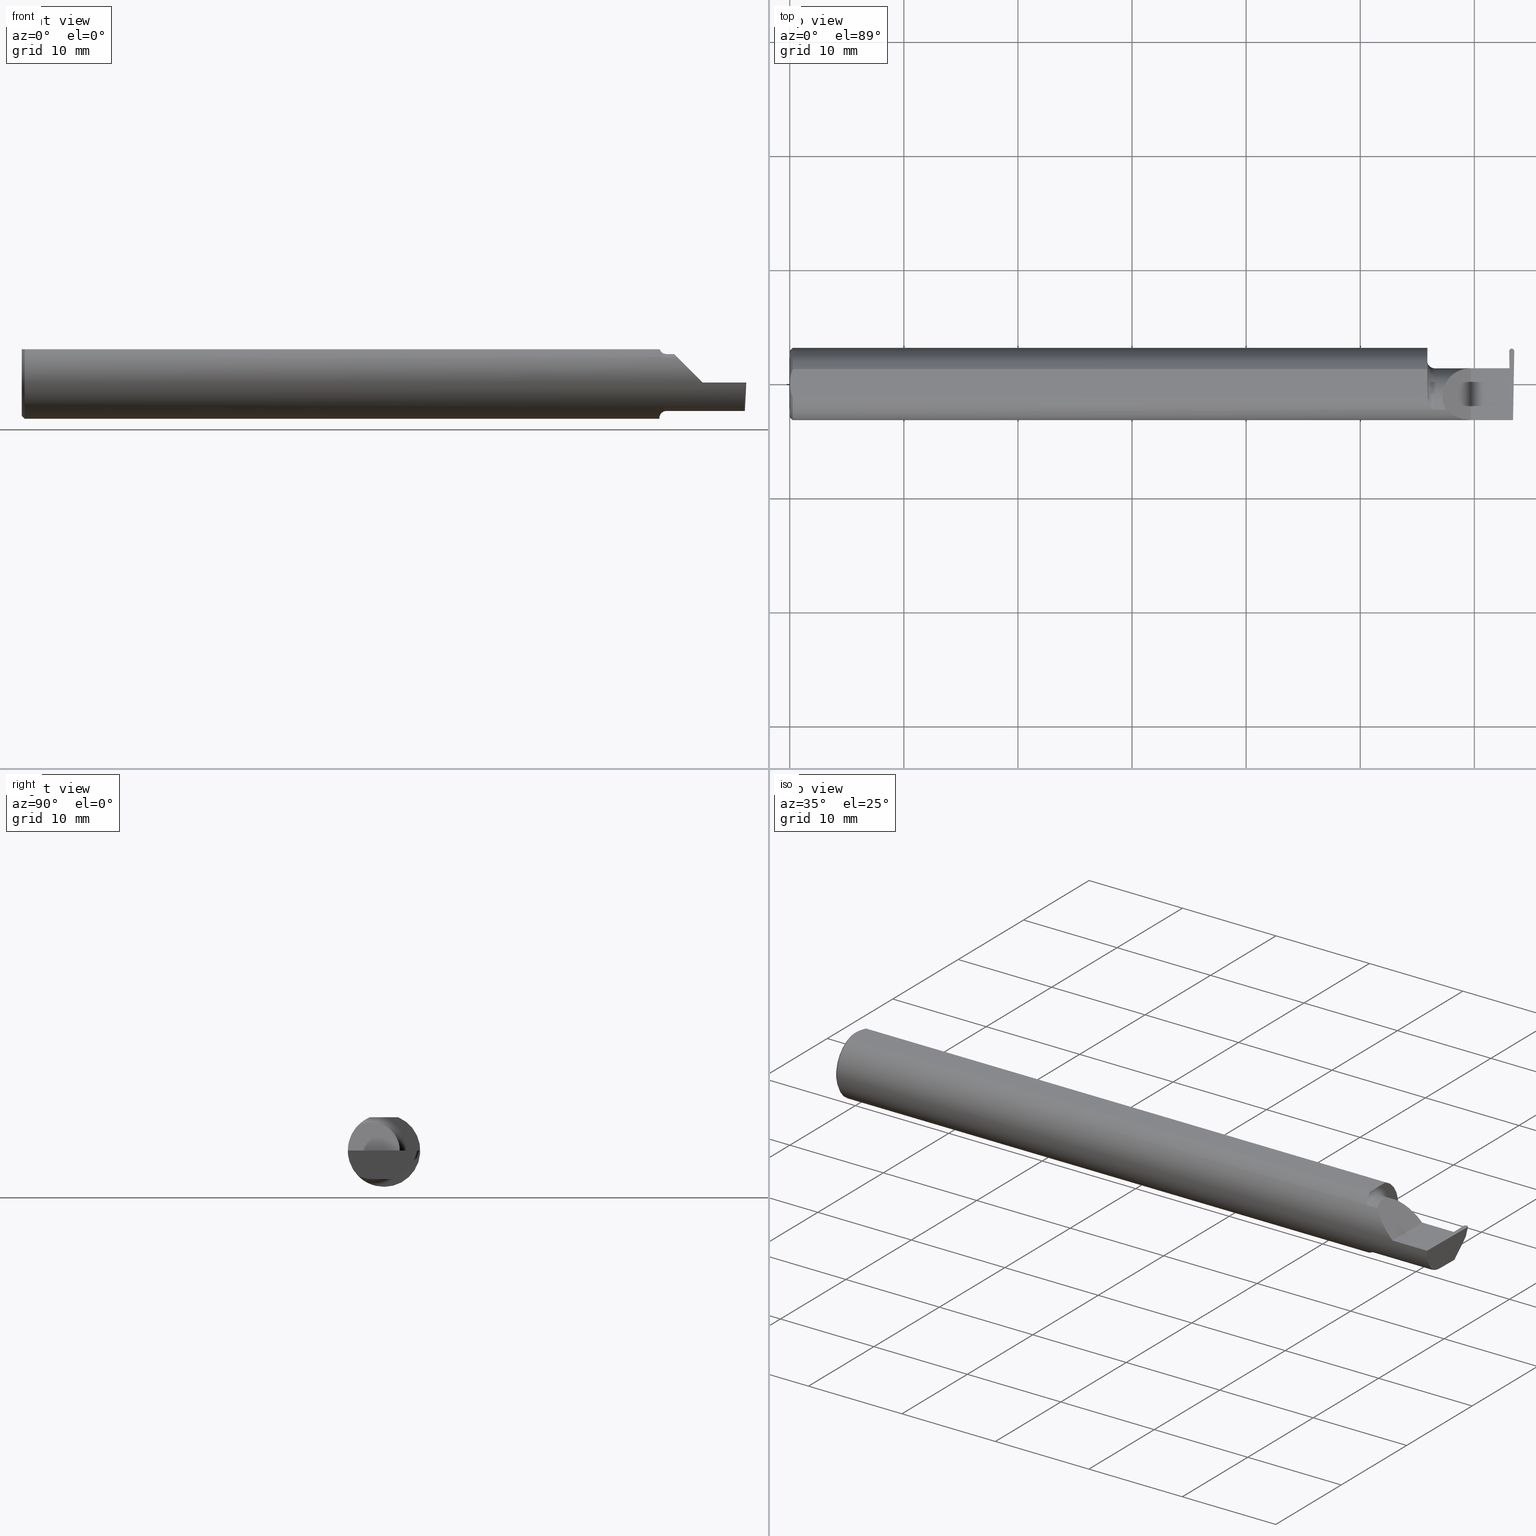
[diagram: canonical four-view strip — front | top / right | iso, engineering-drawing reading convention]
A machine part, canonical four-view strip (front | top / right | iso — engineering-drawing reading convention). The complete STEP part file that produces these views, byte-faithful:
ISO-10303-21;
HEADER;
FILE_DESCRIPTION (( 'STEP AP203' ),
    '1' );
FILE_NAME ('221912-GFR017Q-4.STEP',
    '2024-06-17T18:38:01',
    ( '' ),
    ( '' ),
    'SwSTEP 2.0',
    'SolidWorks 2022',
    '' );
FILE_SCHEMA (( 'CONFIG_CONTROL_DESIGN' ));
ENDSEC;

DATA;
#1 = EDGE_LOOP ( 'NONE', ( #291, #182, #491 ) ) ;
#2 = CARTESIAN_POINT ( 'NONE',  ( 2.200000000000000178, 0.05399999999999999939, 3.673940397442056417E-17 ) ) ;
#3 = CARTESIAN_POINT ( 'NONE',  ( 2.753179778023443269, 0.1250000000000000278, 0.1149999999999999217 ) ) ;
#4 = ORIENTED_EDGE ( 'NONE', *, *, #629, .F. ) ;
#5 = CC_DESIGN_PERSON_AND_ORGANIZATION_ASSIGNMENT ( #383, #333, ( #14 ) ) ;
#6 = CARTESIAN_POINT ( 'NONE',  ( 2.224355642859858317, -0.01728409361947881584, 0.1256443571401406056 ) ) ;
#7 = CARTESIAN_POINT ( 'NONE',  ( 2.201395249340555527, -0.04087966525208431429, 0.1149999999999999356 ) ) ;
#8 =( LENGTH_UNIT ( ) NAMED_UNIT ( * ) SI_UNIT ( $, .METRE. ) );
#9 = VERTEX_POINT ( 'NONE', #252 ) ;
#10 = EDGE_CURVE ( 'NONE', #241, #186, #70, .T. ) ;
#11 = APPROVAL_ROLE ( '' ) ;
#12 = CARTESIAN_POINT ( 'NONE',  ( 2.220169762358874532, -0.08954173371311453800, 0.08723520050116044533 ) ) ;
#13 = VERTEX_POINT ( 'NONE', #570 ) ;
#14 = PRODUCT ( '221912-GFR017Q-4', '221912-GFR017Q-4', '', ( #447 ) ) ;
#15 = LENGTH_MEASURE_WITH_UNIT ( LENGTH_MEASURE( 0.02539999999999999897 ), #8 );
#16 = AXIS2_PLACEMENT_3D ( 'NONE', #509, #355, #357 ) ;
#17 = AXIS2_PLACEMENT_3D ( 'NONE', #437, #493, #390 ) ;
#18 = CARTESIAN_POINT ( 'NONE',  ( 2.201278290187167919, -0.04898979485482365254, 0.1149999999999999217 ) ) ;
#19 = ORIENTED_EDGE ( 'NONE', *, *, #410, .T. ) ;
#20 = CARTESIAN_POINT ( 'NONE',  ( 0.000000000000000000, 0.000000000000000000, 0.000000000000000000 ) ) ;
#21 = ORIENTED_EDGE ( 'NONE', *, *, #397, .T. ) ;
#22 = ADVANCED_FACE ( 'NONE', ( #136 ), #349, .F. ) ;
#23 = VERTEX_POINT ( 'NONE', #684 ) ;
#24 = ORIENTED_EDGE ( 'NONE', *, *, #28, .T. ) ;
#25 = CC_DESIGN_PERSON_AND_ORGANIZATION_ASSIGNMENT ( #589, #200, ( #174 ) ) ;
#26 = DIRECTION ( 'NONE',  ( 1.000000000000000000, 0.000000000000000000, 0.000000000000000000 ) ) ;
#27 = DIRECTION ( 'NONE',  ( 0.000000000000000000, 0.000000000000000000, -1.000000000000000000 ) ) ;
#28 = EDGE_CURVE ( 'NONE', #547, #433, #112, .T. ) ;
#29 = CARTESIAN_POINT ( 'NONE',  ( 1.642610067308552155E-16, 0.01684316307400865464, 0.1149999999999999217 ) ) ;
#30 = ORIENTED_EDGE ( 'NONE', *, *, #436, .F. ) ;
#31 = CARTESIAN_POINT ( 'NONE',  ( 0.000000000000000000, 3.414809992080329023E-17, 0.1149999999999999217 ) ) ;
#32 = DIRECTION ( 'NONE',  ( -0.01745240643727528213, -0.9998476951563914916, 0.000000000000000000 ) ) ;
#33 = VERTEX_POINT ( 'NONE', #188 ) ;
#34 = AXIS2_PLACEMENT_3D ( 'NONE', #267, #533, #649 ) ;
#35 = CARTESIAN_POINT ( 'NONE',  ( 0.004414142251465132810, -0.03315347577847933824, 0.1149999999999999356 ) ) ;
#36 = CARTESIAN_POINT ( 'NONE',  ( 2.263691591372603895, -0.09042045454545458161, 0.08630840862739504182 ) ) ;
#37 = EDGE_CURVE ( 'NONE', #73, #105, #132, .T. ) ;
#38 = CARTESIAN_POINT ( 'NONE',  ( 2.200000000000000178, 0.1249999999999999584, 0.000000000000000000 ) ) ;
#39 = LINE ( 'NONE', #43, #253 ) ;
#40 = LINE ( 'NONE', #692, #327 ) ;
#41 = DESIGN_CONTEXT ( 'detailed design', #669, 'design' ) ;
#42 = ORIENTED_EDGE ( 'NONE', *, *, #588, .F. ) ;
#43 = CARTESIAN_POINT ( 'NONE',  ( 2.353741705000000017, -0.09042045454545420691, -0.08630840862739533326 ) ) ;
#44 = CARTESIAN_POINT ( 'NONE',  ( 2.482484743930750248, 0.1130888516759625262, 0.000000000000000000 ) ) ;
#45 = EDGE_CURVE ( 'NONE', #511, #662, #504, .T. ) ;
#46 = AXIS2_PLACEMENT_3D ( 'NONE', #514, #26, #27 ) ;
#47 = ORIENTED_EDGE ( 'NONE', *, *, #668, .T. ) ;
#48 = DIRECTION ( 'NONE',  ( -1.000000000000000000, -0.000000000000000000, -0.000000000000000000 ) ) ;
#49 = CARTESIAN_POINT ( 'NONE',  ( 2.487116141968339189, -0.04422966076191059415, -0.09800000000000008704 ) ) ;
#50 = ORIENTED_EDGE ( 'NONE', *, *, #341, .F. ) ;
#51 = DIRECTION ( 'NONE',  ( -1.000000000000000000, 0.000000000000000000, 1.224646799147352468E-16 ) ) ;
#52 = B_SPLINE_CURVE_WITH_KNOTS ( 'NONE', 3,
 ( #116, #121, #236, #334 ),
 .UNSPECIFIED., .F., .F.,
 ( 4, 4 ),
 ( 0.000000000000000000, 1.000000000000000000 ),
 .UNSPECIFIED. ) ;
#53 = DIRECTION ( 'NONE',  ( -0.01745240643727527866, -0.9998476951563912696, 0.000000000000000000 ) ) ;
#54 = CC_DESIGN_PERSON_AND_ORGANIZATION_ASSIGNMENT ( #104, #307, ( #473 ) ) ;
#55 = VERTEX_POINT ( 'NONE', #345 ) ;
#56 = ORGANIZATION ( 'UNSPECIFIED', 'UNSPECIFIED', '' ) ;
#57 = DIRECTION ( 'NONE',  ( 1.000000000000000000, -3.022133221983130545E-17, 0.000000000000000000 ) ) ;
#58 = LINE ( 'NONE', #640, #516 ) ;
#59 = APPLICATION_PROTOCOL_DEFINITION ( 'international standard', 'config_control_design', 1994, #480 ) ;
#60 =( BOUNDED_CURVE ( )  B_SPLINE_CURVE ( 3, ( #565, #250, #690, #406 ),
 .UNSPECIFIED., .F., .T. ) 
 B_SPLINE_CURVE_WITH_KNOTS ( ( 4, 4 ),
 ( 1.677524580234106333, 3.253450286950926529 ),
 .UNSPECIFIED. ) 
 CURVE ( )  GEOMETRIC_REPRESENTATION_ITEM ( )  RATIONAL_B_SPLINE_CURVE ( ( 1.000000000000000000, 0.8035272986452476340, 0.8035272986452476340, 1.000000000000000000 ) ) 
 REPRESENTATION_ITEM ( '' )  );
#61 = ADVANCED_FACE ( 'NONE', ( #456 ), #299, .F. ) ;
#62 = CARTESIAN_POINT ( 'NONE',  ( 2.483516143673287768, 0.05399999999999997163, 0.000000000000000000 ) ) ;
#63 = ORIENTED_EDGE ( 'NONE', *, *, #507, .T. ) ;
#64 = CARTESIAN_POINT ( 'NONE',  ( 2.266956372099407258, 0.05399999999999999939, 0.08304362790059187371 ) ) ;
#65 = FACE_OUTER_BOUND ( 'NONE', #452, .T. ) ;
#66 = ORIENTED_EDGE ( 'NONE', *, *, #45, .F. ) ;
#67 = CIRCLE ( 'NONE', #312, 0.1250000000000000000 ) ;
#68 = ADVANCED_FACE ( 'NONE', ( #84 ), #137, .T. ) ;
#69 = ORIENTED_EDGE ( 'NONE', *, *, #10, .T. ) ;
#70 = B_SPLINE_CURVE_WITH_KNOTS ( 'NONE', 3,
 ( #617, #630, #356, #301, #409, #147, #360, #674, #505, #245, #458, #190 ),
 .UNSPECIFIED., .F., .F.,
 ( 4, 2, 2, 2, 2, 4 ),
 ( 1.964009442425878487E-07, 0.0001304774066965714305, 0.0002607584124489002687, 0.0005213204239535722566, 0.001042444446962915256, 0.002084692492981602124 ),
 .UNSPECIFIED. ) ;
#71 = EDGE_LOOP ( 'NONE', ( #232, #624, #268, #627 ) ) ;
#72 = ORIENTED_EDGE ( 'NONE', *, *, #519, .T. ) ;
#73 = VERTEX_POINT ( 'NONE', #246 ) ;
#74 = ORIENTED_EDGE ( 'NONE', *, *, #302, .F. ) ;
#75 = CC_DESIGN_PERSON_AND_ORGANIZATION_ASSIGNMENT ( #610, #124, ( #257 ) ) ;
#76 = ADVANCED_FACE ( 'NONE', ( #675 ), #195, .T. ) ;
#77 = ORIENTED_EDGE ( 'NONE', *, *, #534, .T. ) ;
#78 = ORIENTED_EDGE ( 'NONE', *, *, #351, .F. ) ;
#79 = VECTOR ( 'NONE', #165, 39.37007874015748143 ) ;
#80 = DIRECTION ( 'NONE',  ( 0.000000000000000000, -0.7071067811865514585, 0.7071067811865435759 ) ) ;
#81 = CARTESIAN_POINT ( 'NONE',  ( 0.006956794985978487743, -0.04122489957750442163, 0.1149999999999999356 ) ) ;
#82 = DIRECTION ( 'NONE',  ( -1.000000000000000000, 3.022133221983130545E-17, -0.000000000000000000 ) ) ;
#83 = ORIENTED_EDGE ( 'NONE', *, *, #573, .T. ) ;
#84 = FACE_OUTER_BOUND ( 'NONE', #71, .T. ) ;
#85 = CARTESIAN_POINT ( 'NONE',  ( 2.494705994581233099, -0.1250000000000000278, -0.03254916765648430133 ) ) ;
#86 = EDGE_CURVE ( 'NONE', #33, #555, #419, .T. ) ;
#87 = ORIENTED_EDGE ( 'NONE', *, *, #217, .F. ) ;
#88 = LINE ( 'NONE', #638, #159 ) ;
#89 = ORIENTED_EDGE ( 'NONE', *, *, #573, .F. ) ;
#90 = CARTESIAN_POINT ( 'NONE',  ( 2.200000000000000178, 0.1250000000000000278, 0.1149999999999999217 ) ) ;
#91 = CARTESIAN_POINT ( 'NONE',  ( 0.000000000000000000, 3.414809992080329023E-17, 0.1149999999999999217 ) ) ;
#92 = DATE_TIME_ROLE ( 'classification_date' ) ;
#93 = CARTESIAN_POINT ( 'NONE',  ( 2.483759070038810801, 0.05376127692546273790, -0.006836134426924772231 ) ) ;
#94 = DIRECTION ( 'NONE',  ( 0.000000000000000000, -1.000000000000000000, 0.000000000000000000 ) ) ;
#95 = VECTOR ( 'NONE', #567, 39.37007874015748854 ) ;
#96 = DIRECTION ( 'NONE',  ( 1.000000000000000000, 0.000000000000000000, 0.000000000000000000 ) ) ;
#97 = CARTESIAN_POINT ( 'NONE',  ( 2.491352627470454273, 0.1219999999999999835, 0.000000000000000000 ) ) ;
#98 = CARTESIAN_POINT ( 'NONE',  ( 2.200000000000000622, -0.008475349815581305693, 0.1149999999999999356 ) ) ;
#99 = AXIS2_PLACEMENT_3D ( 'NONE', #177, #540, #316 ) ;
#100 = APPROVAL_DATE_TIME ( #569, #470 ) ;
#101 = ORIENTED_EDGE ( 'NONE', *, *, #658, .T. ) ;
#102 = DIRECTION ( 'NONE',  ( -1.224646799147352468E-16, 0.000000000000000000, -1.000000000000000000 ) ) ;
#103 = LINE ( 'NONE', #49, #550 ) ;
#104 = PERSON_AND_ORGANIZATION ( #636, #56 ) ;
#105 = VERTEX_POINT ( 'NONE', #407 ) ;
#106 = DIRECTION ( 'NONE',  ( -0.9992386149554827179, 0.01744177490282193196, 0.03489949670250104552 ) ) ;
#107 = FACE_OUTER_BOUND ( 'NONE', #187, .T. ) ;
#108 = CARTESIAN_POINT ( 'NONE',  ( 2.491241705000000195, 0.1210669986517045327, -0.002709632664605812237 ) ) ;
#109 = EDGE_CURVE ( 'NONE', #186, #615, #67, .T. ) ;
#110 = PRODUCT_DEFINITION_SHAPE ( 'NONE', 'NONE',  #257 ) ;
#111 = EDGE_LOOP ( 'NONE', ( #275, #375, #400, #280, #443 ) ) ;
#112 =( BOUNDED_CURVE ( )  B_SPLINE_CURVE ( 3, ( #411, #296, #564, #616 ),
 .UNSPECIFIED., .F., .T. ) 
 B_SPLINE_CURVE_WITH_KNOTS ( ( 4, 4 ),
 ( 4.712388980384689674, 5.474523801125204869 ),
 .UNSPECIFIED. ) 
 CURVE ( )  GEOMETRIC_REPRESENTATION_ITEM ( )  RATIONAL_B_SPLINE_CURVE ( ( 1.000000000000000000, 0.9521787881681385013, 0.9521787881681385013, 1.000000000000000000 ) ) 
 REPRESENTATION_ITEM ( '' )  );
#113 = APPROVAL_PERSON_ORGANIZATION ( #181, #455, #11 ) ;
#114 = DIRECTION ( 'NONE',  ( -0.01745240643727751992, 0.9998476951563912696, -0.000000000000000000 ) ) ;
#115 = CARTESIAN_POINT ( 'NONE',  ( 2.491241705000000639, 0.1161392751108076271, -0.01697590219109521015 ) ) ;
#116 = CARTESIAN_POINT ( 'NONE',  ( 2.477090476183632539, 0.05376127692546273096, -0.006836134426924777435 ) ) ;
#117 = ORIENTED_EDGE ( 'NONE', *, *, #283, .F. ) ;
#118 = ORIENTED_EDGE ( 'NONE', *, *, #86, .T. ) ;
#119 = CARTESIAN_POINT ( 'NONE',  ( 2.263691591372603895, -0.09042045454545458161, 0.08630840862739504182 ) ) ;
#120 =( NAMED_UNIT ( * ) SI_UNIT ( $, .STERADIAN. ) SOLID_ANGLE_UNIT ( ) );
#121 = CARTESIAN_POINT ( 'NONE',  ( 2.477170050541811719, 0.05384085128364181350, -0.004557422951283176572 ) ) ;
#122 = ORIENTED_EDGE ( 'NONE', *, *, #384, .F. ) ;
#123 = CARTESIAN_POINT ( 'NONE',  ( 2.491130782529545673, 0.1219999999999999835, 0.000000000000000000 ) ) ;
#124 = PERSON_AND_ORGANIZATION_ROLE ( 'creator' ) ;
#125 = EDGE_CURVE ( 'NONE', #231, #596, #52, .T. ) ;
#126 = ORIENTED_EDGE ( 'NONE', *, *, #629, .T. ) ;
#127 = ORIENTED_EDGE ( 'NONE', *, *, #563, .T. ) ;
#128 = CARTESIAN_POINT ( 'NONE',  ( 2.350000000000000089, -0.2500000000000000555, 1.836970198721028825E-17 ) ) ;
#129 = CIRCLE ( 'NONE', #620, 0.1250000000000000000 ) ;
#130 = EDGE_LOOP ( 'NONE', ( #42, #158, #554, #142, #643, #585, #449, #78, #331 ) ) ;
#131 = ORIENTED_EDGE ( 'NONE', *, *, #167, .F. ) ;
#132 = LINE ( 'NONE', #144, #678 ) ;
#133 = ORIENTED_EDGE ( 'NONE', *, *, #588, .T. ) ;
#134 = ORIENTED_EDGE ( 'NONE', *, *, #465, .T. ) ;
#135 = ADVANCED_FACE ( 'NONE', ( #65 ), #605, .F. ) ;
#136 = FACE_OUTER_BOUND ( 'NONE', #298, .T. ) ;
#137 = CONICAL_SURFACE ( 'NONE', #46, 0.1149999999999997274, 0.7853981633974407295 ) ;
#138 = CARTESIAN_POINT ( 'NONE',  ( 0.01000000000000042348, 0.000000000000000000, 0.000000000000000000 ) ) ;
#139 = EDGE_CURVE ( 'NONE', #178, #169, #230, .T. ) ;
#140 = DIRECTION ( 'NONE',  ( -0.03701368837992521227, 0.7066222423871550973, 0.7066222423871629799 ) ) ;
#141 = CARTESIAN_POINT ( 'NONE',  ( 0.01000000000000042348, 0.04898979485566374442, 0.1149999999999999217 ) ) ;
#142 = ORIENTED_EDGE ( 'NONE', *, *, #466, .F. ) ;
#143 = EDGE_CURVE ( 'NONE', #468, #549, #189, .T. ) ;
#144 = CARTESIAN_POINT ( 'NONE',  ( 2.479909448124860472, 0.1786874275525325573, 0.04095129027148528000 ) ) ;
#145 = DIRECTION ( 'NONE',  ( 0.000000000000000000, 0.000000000000000000, -1.000000000000000000 ) ) ;
#146 = DATE_AND_TIME ( #427, #313 ) ;
#147 = CARTESIAN_POINT ( 'NONE',  ( 2.214104893754834436, -0.08507551663519466456, -0.09161800969921161941 ) ) ;
#148 = VECTOR ( 'NONE', #328, 39.37007874015748143 ) ;
#149 = CARTESIAN_POINT ( 'NONE',  ( 2.200000000000000178, -0.0003651515414568704703, 0.1149999999999999217 ) ) ;
#150 = APPROVAL_STATUS ( 'not_yet_approved' ) ;
#151 = CC_DESIGN_PERSON_AND_ORGANIZATION_ASSIGNMENT ( #576, #374, ( #174 ) ) ;
#152 = CARTESIAN_POINT ( 'NONE',  ( 3.749399456654637998E-32, -0.1249999999999999861, 3.061616997868380183E-16 ) ) ;
#153 = CARTESIAN_POINT ( 'NONE',  ( 2.493862026000344123, -0.1128945894460738203, -0.06276352435079129988 ) ) ;
#154 = CALENDAR_DATE ( 2024, 17, 6 ) ;
#155 = ORIENTED_EDGE ( 'NONE', *, *, #143, .T. ) ;
#156 = LINE ( 'NONE', #310, #79 ) ;
#157 = DIRECTION ( 'NONE',  ( -0.7071067811865439090, 0.000000000000000000, -0.7071067811865511255 ) ) ;
#158 = ORIENTED_EDGE ( 'NONE', *, *, #635, .T. ) ;
#159 = VECTOR ( 'NONE', #32, 39.37007874015747433 ) ;
#160 = VECTOR ( 'NONE', #639, 39.37007874015748143 ) ;
#161 = ADVANCED_FACE ( 'NONE', ( #440 ), #659, .T. ) ;
#162 = CARTESIAN_POINT ( 'NONE',  ( 2.485685536098598103, 0.04997501107658532116, -0.06098225869090301288 ) ) ;
#163 = DIRECTION ( 'NONE',  ( -0.001239419280281409477, 0.9999992319196288060, 0.000000000000000000 ) ) ;
#164 = AXIS2_PLACEMENT_3D ( 'NONE', #172, #490, #448 ) ;
#165 = DIRECTION ( 'NONE',  ( 1.000000000000000000, -0.000000000000000000, -0.000000000000000000 ) ) ;
#166 = DIRECTION ( 'NONE',  ( 0.03490480639812536257, 0.000000000000000000, -0.9993906415863165194 ) ) ;
#167 = EDGE_CURVE ( 'NONE', #9, #231, #475, .T. ) ;
#168 = DATE_AND_TIME ( #650, #404 ) ;
#169 = VERTEX_POINT ( 'NONE', #421 ) ;
#170 = CARTESIAN_POINT ( 'NONE',  ( 2.482619091902263264, 0.1593323594802356913, 0.02159622219918818850 ) ) ;
#171 = CARTESIAN_POINT ( 'NONE',  ( 2.200474906351709503, -0.01657217611496075368, 0.1149999999999999217 ) ) ;
#172 = CARTESIAN_POINT ( 'NONE',  ( 2.672413070268786939, -0.04400000000000017092, -0.09800000000000008704 ) ) ;
#173 = ORIENTED_EDGE ( 'NONE', *, *, #622, .F. ) ;
#174 = PRODUCT_DEFINITION_FORMATION_WITH_SPECIFIED_SOURCE ( 'ANY', '', #14, .NOT_KNOWN. ) ;
#175 = CARTESIAN_POINT ( 'NONE',  ( 2.483653633920236636, 0.1072077918165304095, -0.03052834546451767619 ) ) ;
#176 = CIRCLE ( 'NONE', #16, 0.09800000000000012867 ) ;
#177 = CARTESIAN_POINT ( 'NONE',  ( 2.487625705767810835, 0.08237848374744562163, -0.08819314548155177125 ) ) ;
#178 = VERTEX_POINT ( 'NONE', #97 ) ;
#179 = CARTESIAN_POINT ( 'NONE',  ( 2.486551887963902807, 0.1129002240869108470, -0.02483591319413719703 ) ) ;
#180 = EDGE_CURVE ( 'NONE', #9, #387, #212, .T. ) ;
#181 = PERSON_AND_ORGANIZATION ( #636, #56 ) ;
#182 = ORIENTED_EDGE ( 'NONE', *, *, #28, .F. ) ;
#183 = CARTESIAN_POINT ( 'NONE',  ( 0.000000000000000000, 0.000000000000000000, -0.1149999999999997274 ) ) ;
#184 = ORIENTED_EDGE ( 'NONE', *, *, #465, .F. ) ;
#185 = VECTOR ( 'NONE', #48, 39.37007874015748143 ) ;
#186 = VERTEX_POINT ( 'NONE', #225 ) ;
#187 = EDGE_LOOP ( 'NONE', ( #602, #500 ) ) ;
#188 = CARTESIAN_POINT ( 'NONE',  ( 0.01000000000000042348, -0.04898979485566374442, 0.1149999999999999217 ) ) ;
#189 = B_SPLINE_CURVE_WITH_KNOTS ( 'NONE', 3,
 ( #18, #279, #494, #284, #438, #655, #385, #12, #599, #329 ),
 .UNSPECIFIED., .F., .F.,
 ( 4, 2, 2, 2, 4 ),
 ( 5.067393807208279738E-07, 0.0007430328995835296536, 0.001114295979684933827, 0.001299927519735635372, 0.001485559059786337134 ),
 .UNSPECIFIED. ) ;
#190 = CARTESIAN_POINT ( 'NONE',  ( 2.200000000000000178, -0.02763636363636349721, -0.1219066503721543682 ) ) ;
#191 = DIRECTION ( 'NONE',  ( 0.03867711768363055885, -0.3253245514560477725, -0.9448111011136606230 ) ) ;
#192 = AXIS2_PLACEMENT_3D ( 'NONE', #38, #472, #623 ) ;
#193 = ORIENTED_EDGE ( 'NONE', *, *, #318, .F. ) ;
#194 = ADVANCED_FACE ( 'NONE', ( #317 ), #382, .F. ) ;
#195 = CONICAL_SURFACE ( 'NONE', #369, 0.1149999999999997274, 0.7853981633974407295 ) ;
#196 = DIRECTION ( 'NONE',  ( 1.000000000000000000, -3.022133221983130545E-17, 0.000000000000000000 ) ) ;
#197 = ADVANCED_FACE ( 'NONE', ( #377 ), #482, .F. ) ;
#198 = CARTESIAN_POINT ( 'NONE',  ( -3.937007874019685528E-05, 0.1219999999999999835, 0.000000000000000000 ) ) ;
#199 = CARTESIAN_POINT ( 'NONE',  ( 0.01000000000000042348, 0.04898979485566374442, 0.1149999999999999217 ) ) ;
#200 = PERSON_AND_ORGANIZATION_ROLE ( 'design_supplier' ) ;
#201 = CC_DESIGN_DATE_AND_TIME_ASSIGNMENT ( #168, #595, ( #257 ) ) ;
#202 = DIRECTION ( 'NONE',  ( 1.000000000000000000, -0.000000000000000000, -0.000000000000000000 ) ) ;
#203 = DIRECTION ( 'NONE',  ( 1.000000000000000000, 0.000000000000000000, 0.000000000000000000 ) ) ;
#204 = CC_DESIGN_APPROVAL ( #470, ( #473 ) ) ;
#205 = AXIS2_PLACEMENT_3D ( 'NONE', #44, #426, #166 ) ;
#206 = CARTESIAN_POINT ( 'NONE',  ( 2.487115857322145018, -0.04400000000000009459, -0.09800000000000008704 ) ) ;
#207 = CARTESIAN_POINT ( 'NONE',  ( 2.493431982762754462, -0.09042045454545420691, -0.08630840862739533326 ) ) ;
#208 = APPROVAL_STATUS ( 'not_yet_approved' ) ;
#209 =( BOUNDED_CURVE ( )  B_SPLINE_CURVE ( 3, ( #626, #153, #85, #300 ),
 .UNSPECIFIED., .F., .T. ) 
 B_SPLINE_CURVE_WITH_KNOTS ( ( 4, 4 ),
 ( 0.3451966888490691776, 1.107331509589587926 ),
 .UNSPECIFIED. ) 
 CURVE ( )  GEOMETRIC_REPRESENTATION_ITEM ( )  RATIONAL_B_SPLINE_CURVE ( ( 1.000000000000000000, 0.9521787881681380572, 0.9521787881681380572, 1.000000000000000000 ) ) 
 REPRESENTATION_ITEM ( '' )  );
#210 = ORIENTED_EDGE ( 'NONE', *, *, #180, .F. ) ;
#211 = CARTESIAN_POINT ( 'NONE',  ( 2.498428636891867782, 0.09954970949977201555, -0.03818642778127616377 ) ) ;
#212 = LINE ( 'NONE', #354, #403 ) ;
#213 = CARTESIAN_POINT ( 'NONE',  ( 2.225000000000000089, -0.09042045454545417915, -0.08630840862739536101 ) ) ;
#214 = ORIENTED_EDGE ( 'NONE', *, *, #553, .F. ) ;
#215 = PLANE ( 'NONE',  #526 ) ;
#216 = CARTESIAN_POINT ( 'NONE',  ( 2.477090476183632539, 0.05376127692546273096, -0.006836134426924777435 ) ) ;
#217 = EDGE_CURVE ( 'NONE', #380, #13, #350, .T. ) ;
#218 = ORIENTED_EDGE ( 'NONE', *, *, #139, .F. ) ;
#219 = CARTESIAN_POINT ( 'NONE',  ( 2.350000000000000089, -0.1250000000000000278, 1.836970198721028825E-17 ) ) ;
#220 = PLANE ( 'NONE',  #34 ) ;
#221 = AXIS2_PLACEMENT_3D ( 'NONE', #303, #682, #145 ) ;
#222 =( CONVERSION_BASED_UNIT ( 'INCH', #15 ) LENGTH_UNIT ( ) NAMED_UNIT ( #269 ) );
#223 = ORIENTED_EDGE ( 'NONE', *, *, #272, .T. ) ;
#224 = FACE_OUTER_BOUND ( 'NONE', #601, .T. ) ;
#225 = CARTESIAN_POINT ( 'NONE',  ( 2.200000000000000178, -0.02763636363636349721, -0.1219066503721543682 ) ) ;
#226 = APPROVAL_STATUS ( 'not_yet_approved' ) ;
#227 = ADVANCED_BREP_SHAPE_REPRESENTATION ( '221912-GFR017Q-4', ( #701, #17 ), #370 ) ;
#228 = LINE ( 'NONE', #612, #679 ) ;
#229 = DATE_AND_TIME ( #544, #454 ) ;
#230 = LINE ( 'NONE', #391, #584 ) ;
#231 = VERTEX_POINT ( 'NONE', #216 ) ;
#232 = ORIENTED_EDGE ( 'NONE', *, *, #457, .F. ) ;
#233 = APPROVAL_PERSON_ORGANIZATION ( #522, #470, #646 ) ;
#234 = CARTESIAN_POINT ( 'NONE',  ( 2.499991849855255133, 0.1126983510377570219, 0.000000000000000000 ) ) ;
#235 = AXIS2_PLACEMENT_3D ( 'NONE', #373, #157, #645 ) ;
#236 = CARTESIAN_POINT ( 'NONE',  ( 2.477249624899990899, 0.05392042564182088910, -0.002278711475641588286 ) ) ;
#237 = ORIENTED_EDGE ( 'NONE', *, *, #512, .T. ) ;
#238 = CARTESIAN_POINT ( 'NONE',  ( 2.485980426908312779, 0.1220000000000002333, 1.771906798517136265E-17 ) ) ;
#239 = ORIENTED_EDGE ( 'NONE', *, *, #109, .F. ) ;
#240 = ORIENTED_EDGE ( 'NONE', *, *, #466, .T. ) ;
#241 = VERTEX_POINT ( 'NONE', #213 ) ;
#242 = ORIENTED_EDGE ( 'NONE', *, *, #351, .T. ) ;
#243 = ADVANCED_FACE ( 'NONE', ( #524 ), #274, .F. ) ;
#244 = ORIENTED_EDGE ( 'NONE', *, *, #563, .F. ) ;
#245 = CARTESIAN_POINT ( 'NONE',  ( 2.201267035147732809, -0.05364148398375678112, -0.1136671534952896356 ) ) ;
#246 = CARTESIAN_POINT ( 'NONE',  ( 2.486599431103166058, 0.05097006188126036036, -0.08676607539978835326 ) ) ;
#247 = LINE ( 'NONE', #676, #295 ) ;
#248 = EDGE_CURVE ( 'NONE', #541, #55, #103, .T. ) ;
#249 = DIRECTION ( 'NONE',  ( 0.03547001781079549970, 0.000000000000000000, -0.9993707409347653003 ) ) ;
#250 = CARTESIAN_POINT ( 'NONE',  ( 2.500086857341869528, 0.1181413263005396674, -1.815796599807464593E-17 ) ) ;
#251 = CIRCLE ( 'NONE', #644, 0.1149999999999997274 ) ;
#252 = CARTESIAN_POINT ( 'NONE',  ( 2.483759070038810801, 0.05376127692546273790, -0.006836134426924772231 ) ) ;
#253 = VECTOR ( 'NONE', #637, 39.37007874015748143 ) ;
#254 = DIRECTION ( 'NONE',  ( 0.000000000000000000, -0.7071067811865435759, -0.7071067811865514585 ) ) ;
#255 = DIRECTION ( 'NONE',  ( 1.000000000000000000, -3.022133221983130545E-17, 0.000000000000000000 ) ) ;
#256 = ORIENTED_EDGE ( 'NONE', *, *, #125, .F. ) ;
#257 = PRODUCT_DEFINITION ( 'UNKNOWN', '', #174, #41 ) ;
#258 = ADVANCED_FACE ( 'NONE', ( #107 ), #220, .F. ) ;
#259 = CARTESIAN_POINT ( 'NONE',  ( 2.483516143673287768, 0.05399999999999997163, 0.000000000000000000 ) ) ;
#260 = APPROVAL_ROLE ( '' ) ;
#261 =( BOUNDED_CURVE ( )  B_SPLINE_CURVE ( 3, ( #119, #6, #64, #543 ),
 .UNSPECIFIED., .F., .F. ) 
 B_SPLINE_CURVE_WITH_KNOTS ( ( 4, 4 ),
 ( 5.789722842198294472, 7.853981633974482790 ),
 .UNSPECIFIED. ) 
 CURVE ( )  GEOMETRIC_REPRESENTATION_ITEM ( )  RATIONAL_B_SPLINE_CURVE ( ( 1.000000000000000000, 0.6753281001527240424, 0.6753281001527240424, 1.000000000000000000 ) ) 
 REPRESENTATION_ITEM ( '' )  );
#262 = CARTESIAN_POINT ( 'NONE',  ( -3.937007874019685528E-05, 0.1219999999999999835, 0.000000000000000000 ) ) ;
#263 = CARTESIAN_POINT ( 'NONE',  ( 2.200000000000000178, -0.04400000000000008765, 0.000000000000000000 ) ) ;
#264 = AXIS2_PLACEMENT_3D ( 'NONE', #471, #523, #691 ) ;
#265 = ORIENTED_EDGE ( 'NONE', *, *, #167, .T. ) ;
#266 = CARTESIAN_POINT ( 'NONE',  ( 2.498428636891867782, 0.09954970949977201555, -0.03818642778127616377 ) ) ;
#267 = CARTESIAN_POINT ( 'NONE',  ( 0.000000000000000000, 0.000000000000000000, 0.000000000000000000 ) ) ;
#268 = ORIENTED_EDGE ( 'NONE', *, *, #384, .T. ) ;
#269 = DIMENSIONAL_EXPONENTS ( 1.000000000000000000, 0.000000000000000000, 0.000000000000000000, 0.000000000000000000, 0.000000000000000000, 0.000000000000000000, 0.000000000000000000 ) ;
#270 = CARTESIAN_POINT ( 'NONE',  ( 2.672413070268786939, -0.04400000000000017092, -0.09800000000000008704 ) ) ;
#271 = SHAPE_DEFINITION_REPRESENTATION ( #110, #227 ) ;
#272 = EDGE_CURVE ( 'NONE', #33, #441, #129, .T. ) ;
#273 = DIRECTION ( 'NONE',  ( -0.03867711768363056579, 0.3253245514560478280, 0.9448111011136607340 ) ) ;
#274 = PLANE ( 'NONE',  #205 ) ;
#275 = ORIENTED_EDGE ( 'NONE', *, *, #688, .T. ) ;
#276 = LINE ( 'NONE', #288, #148 ) ;
#277 = DIRECTION ( 'NONE',  ( 0.000000000000000000, 0.000000000000000000, 1.000000000000000000 ) ) ;
#278 = DIRECTION ( 'NONE',  ( 0.000000000000000000, 0.000000000000000000, 1.000000000000000000 ) ) ;
#279 = CARTESIAN_POINT ( 'NONE',  ( 2.202426556614087261, -0.05801934803182996064, 0.1111534264545066403 ) ) ;
#280 = ORIENTED_EDGE ( 'NONE', *, *, #590, .T. ) ;
#281 = ORIENTED_EDGE ( 'NONE', *, *, #109, .T. ) ;
#282 = CYLINDRICAL_SURFACE ( 'NONE', #619, 0.1250000000000000000 ) ;
#283 = EDGE_CURVE ( 'NONE', #687, #13, #58, .T. ) ;
#284 = CARTESIAN_POINT ( 'NONE',  ( 2.209055883886138716, -0.07758562614434634519, 0.09811804109501570670 ) ) ;
#285 = ORIENTED_EDGE ( 'NONE', *, *, #397, .F. ) ;
#286 = VECTOR ( 'NONE', #191, 39.37007874015748854 ) ;
#287 = VECTOR ( 'NONE', #663, 39.37007874015748854 ) ;
#288 = CARTESIAN_POINT ( 'NONE',  ( 0.000000000000000000, 0.04898979485566374442, 0.1149999999999999217 ) ) ;
#289 = ORIENTED_EDGE ( 'NONE', *, *, #519, .F. ) ;
#290 = ADVANCED_FACE ( 'NONE', ( #435 ), #366, .T. ) ;
#291 = ORIENTED_EDGE ( 'NONE', *, *, #658, .F. ) ;
#292 = ORIENTED_EDGE ( 'NONE', *, *, #635, .F. ) ;
#293 = CARTESIAN_POINT ( 'NONE',  ( 2.487309710820275743, -2.433500170848689415, -0.02001865397949318184 ) ) ;
#294 = EDGE_LOOP ( 'NONE', ( #210, #265, #402, #240 ) ) ;
#295 = VECTOR ( 'NONE', #561, 39.37007874015748143 ) ;
#296 = CARTESIAN_POINT ( 'NONE',  ( 2.317450832343515899, -0.1250000000000000278, 0.03254916765648410010 ) ) ;
#297 = PLANE ( 'NONE',  #192 ) ;
#298 = EDGE_LOOP ( 'NONE', ( #531, #671, #401, #19, #244, #47 ) ) ;
#299 = PLANE ( 'NONE',  #661 ) ;
#300 = CARTESIAN_POINT ( 'NONE',  ( 2.495842809704562626, -0.1250000000000000000, 0.000000000000000000 ) ) ;
#301 = CARTESIAN_POINT ( 'NONE',  ( 2.218701570004387946, -0.08871861273376803469, -0.08806160498138421167 ) ) ;
#302 = EDGE_CURVE ( 'NONE', #468, #485, #591, .T. ) ;
#303 = CARTESIAN_POINT ( 'NONE',  ( 0.000000000000000000, 0.000000000000000000, 0.000000000000000000 ) ) ;
#304 = EDGE_CURVE ( 'NONE', #611, #555, #527, .T. ) ;
#305 = DIRECTION ( 'NONE',  ( 3.022133221983130545E-17, 1.000000000000000000, -0.000000000000000000 ) ) ;
#306 = DIRECTION ( 'NONE',  ( -1.000000000000000000, -0.000000000000000000, -0.000000000000000000 ) ) ;
#307 = PERSON_AND_ORGANIZATION_ROLE ( 'classification_officer' ) ;
#308 = UNCERTAINTY_MEASURE_WITH_UNIT (LENGTH_MEASURE( 1.000000000000000082E-05 ), #222, 'distance_accuracy_value', 'NONE');
#309 = EDGE_LOOP ( 'NONE', ( #69, #193, #74, #155, #592 ) ) ;
#310 = CARTESIAN_POINT ( 'NONE',  ( 2.483516143673287768, 0.05399999999999997163, 0.000000000000000000 ) ) ;
#311 = FACE_OUTER_BOUND ( 'NONE', #683, .T. ) ;
#312 = AXIS2_PLACEMENT_3D ( 'NONE', #681, #196, #625 ) ;
#313 = LOCAL_TIME ( 11, 38, 1.000000000000000000, #525 ) ;
#314 = VECTOR ( 'NONE', #515, 39.37007874015748143 ) ;
#315 = CARTESIAN_POINT ( 'NONE',  ( 2.487048583644937416, 0.01027834358092125436, -0.09800000000000010092 ) ) ;
#316 = DIRECTION ( 'NONE',  ( 0.000000000000000000, 0.9455185755993170682, -0.3255681544571562558 ) ) ;
#317 = FACE_OUTER_BOUND ( 'NONE', #294, .T. ) ;
#318 = EDGE_CURVE ( 'NONE', #485, #186, #618, .T. ) ;
#319 = ORIENTED_EDGE ( 'NONE', *, *, #10, .F. ) ;
#320 = LINE ( 'NONE', #2, #461 ) ;
#321 = DIRECTION ( 'NONE',  ( -0.03549161113179514354, 0.03487750912278164694, 0.9987611851171729338 ) ) ;
#322 = DIRECTION ( 'NONE',  ( 0.03490480639812536257, 0.000000000000000000, 0.9993906415863165194 ) ) ;
#323 = DIRECTION ( 'NONE',  ( 0.000000000000000000, 0.000000000000000000, -1.000000000000000000 ) ) ;
#324 =( NAMED_UNIT ( * ) PLANE_ANGLE_UNIT ( ) SI_UNIT ( $, .RADIAN. ) );
#325 = VECTOR ( 'NONE', #666, 39.37007874015748143 ) ;
#326 = EDGE_LOOP ( 'NONE', ( #173, #50, #292, #353, #667 ) ) ;
#327 = VECTOR ( 'NONE', #255, 39.37007874015748143 ) ;
#328 = DIRECTION ( 'NONE',  ( -1.000000000000000000, -0.000000000000000000, -0.000000000000000000 ) ) ;
#329 = CARTESIAN_POINT ( 'NONE',  ( 2.225000000000000089, -0.09042045454545413752, 0.08630840862739540265 ) ) ;
#330 = EDGE_LOOP ( 'NONE', ( #134, #672, #464, #577 ) ) ;
#331 = ORIENTED_EDGE ( 'NONE', *, *, #359, .T. ) ;
#332 = CARTESIAN_POINT ( 'NONE',  ( 2.491130782529545673, 0.1219999999999999835, 0.000000000000000000 ) ) ;
#333 = PERSON_AND_ORGANIZATION_ROLE ( 'design_owner' ) ;
#334 = CARTESIAN_POINT ( 'NONE',  ( 2.477329199258169634, 0.05399999999999997163, 0.000000000000000000 ) ) ;
#335 = ORIENTED_EDGE ( 'NONE', *, *, #283, .T. ) ;
#336 = ORIENTED_EDGE ( 'NONE', *, *, #318, .T. ) ;
#337 = CARTESIAN_POINT ( 'NONE',  ( 2.482396552658129973, 0.1181413263005396674, 1.815796599807465209E-17 ) ) ;
#338 = ORIENTED_EDGE ( 'NONE', *, *, #302, .T. ) ;
#339 = ORIENTED_EDGE ( 'NONE', *, *, #534, .F. ) ;
#340 = AXIS2_PLACEMENT_3D ( 'NONE', #138, #203, #414 ) ;
#341 = EDGE_CURVE ( 'NONE', #664, #105, #518, .T. ) ;
#342 = VECTOR ( 'NONE', #696, 39.37007874015748143 ) ;
#343 = EDGE_CURVE ( 'NONE', #549, #241, #176, .T. ) ;
#344 = ORIENTED_EDGE ( 'NONE', *, *, #698, .F. ) ;
#345 = CARTESIAN_POINT ( 'NONE',  ( 2.487012073059427397, 0.03973613728104876536, -0.09800000000000008704 ) ) ;
#346 = ORIENTED_EDGE ( 'NONE', *, *, #423, .T. ) ;
#347 = PRODUCT_RELATED_PRODUCT_CATEGORY ( 'detail', '', ( #14 ) ) ;
#348 = VECTOR ( 'NONE', #305, 39.37007874015748143 ) ;
#349 = PLANE ( 'NONE',  #416 ) ;
#350 =( BOUNDED_CURVE ( )  B_SPLINE_CURVE ( 3, ( #587, #529, #594, #476 ),
 .UNSPECIFIED., .F., .T. ) 
 B_SPLINE_CURVE_WITH_KNOTS ( ( 4, 4 ),
 ( 6.253187659403606879, 6.746650124384893310 ),
 .UNSPECIFIED. ) 
 CURVE ( )  GEOMETRIC_REPRESENTATION_ITEM ( )  RATIONAL_B_SPLINE_CURVE ( ( 1.000000000000000000, 0.9798106333074692031, 0.9798106333074692031, 1.000000000000000000 ) ) 
 REPRESENTATION_ITEM ( '' )  );
#351 = EDGE_CURVE ( 'NONE', #662, #542, #88, .T. ) ;
#352 = CARTESIAN_POINT ( 'NONE',  ( 0.01000000000000042348, 0.000000000000000000, -0.1250000000000000000 ) ) ;
#353 = ORIENTED_EDGE ( 'NONE', *, *, #607, .F. ) ;
#354 = CARTESIAN_POINT ( 'NONE',  ( 2.483516143673287768, 0.05399999999999997163, 0.000000000000000000 ) ) ;
#355 = DIRECTION ( 'NONE',  ( -1.000000000000000000, 3.022133221983130545E-17, -0.000000000000000000 ) ) ;
#356 = CARTESIAN_POINT ( 'NONE',  ( 2.221593478233292007, -0.08999923832592905681, -0.08675238105120967880 ) ) ;
#357 = DIRECTION ( 'NONE',  ( 0.000000000000000000, -1.000000000000000000, 0.000000000000000000 ) ) ;
#358 = APPROVAL_DATE_TIME ( #146, #654 ) ;
#359 = EDGE_CURVE ( 'NONE', #662, #178, #60, .T. ) ;
#360 = CARTESIAN_POINT ( 'NONE',  ( 2.212379706860117423, -0.08285324498731268250, -0.09364669410973934516 ) ) ;
#361 = FACE_OUTER_BOUND ( 'NONE', #502, .T. ) ;
#362 = SECURITY_CLASSIFICATION_LEVEL ( 'unclassified' ) ;
#363 = CARTESIAN_POINT ( 'NONE',  ( 2.495842809704562626, -0.1250000000000000000, 0.000000000000000000 ) ) ;
#364 = CARTESIAN_POINT ( 'NONE',  ( 0.000000000000000000, 0.000000000000000000, 0.000000000000000000 ) ) ;
#365 = FACE_OUTER_BOUND ( 'NONE', #130, .T. ) ;
#366 = PLANE ( 'NONE',  #495 ) ;
#367 = COORDINATED_UNIVERSAL_TIME_OFFSET ( 8, 0, .BEHIND. ) ;
#368 = ADVANCED_FACE ( 'NONE', ( #361 ), #297, .T. ) ;
#369 = AXIS2_PLACEMENT_3D ( 'NONE', #459, #405, #621 ) ;
#370 =( GEOMETRIC_REPRESENTATION_CONTEXT ( 3 ) GLOBAL_UNCERTAINTY_ASSIGNED_CONTEXT ( ( #308 ) ) GLOBAL_UNIT_ASSIGNED_CONTEXT ( ( #222, #324, #120 ) ) REPRESENTATION_CONTEXT ( 'NONE', 'WORKASPACE' ) );
#371 =( BOUNDED_CURVE ( )  B_SPLINE_CURVE ( 3, ( #123, #238, #337, #450 ),
 .UNSPECIFIED., .F., .T. ) 
 B_SPLINE_CURVE_WITH_KNOTS ( ( 4, 4 ),
 ( 6.171327673818449711, 7.747253380535275902 ),
 .UNSPECIFIED. ) 
 CURVE ( )  GEOMETRIC_REPRESENTATION_ITEM ( )  RATIONAL_B_SPLINE_CURVE ( ( 1.000000000000000000, 0.8035272986452463018, 0.8035272986452463018, 1.000000000000000000 ) ) 
 REPRESENTATION_ITEM ( '' )  );
#372 = CARTESIAN_POINT ( 'NONE',  ( 2.487115857322145018, -0.04400000000000009459, -0.09800000000000008704 ) ) ;
#373 = CARTESIAN_POINT ( 'NONE',  ( 2.350000000000000089, -0.2500000000000000555, 1.836970198721028825E-17 ) ) ;
#374 = PERSON_AND_ORGANIZATION_ROLE ( 'creator' ) ;
#375 = ORIENTED_EDGE ( 'NONE', *, *, #341, .T. ) ;
#376 = CARTESIAN_POINT ( 'NONE',  ( 2.225000000000000089, -0.09042045454545413752, 0.08630840862739540265 ) ) ;
#377 = FACE_OUTER_BOUND ( 'NONE', #1, .T. ) ;
#378 = CARTESIAN_POINT ( 'NONE',  ( 2.491241705000000639, 0.1186085052529338296, -0.009849615936009994271 ) ) ;
#379 = ADVANCED_FACE ( 'NONE', ( #311 ), #463, .F. ) ;
#380 = VERTEX_POINT ( 'NONE', #207 ) ;
#381 = CARTESIAN_POINT ( 'NONE',  ( 2.350000000000000089, 0.05399999999999999245, 3.673940397442056417E-17 ) ) ;
#382 = PLANE ( 'NONE',  #680 ) ;
#383 = PERSON_AND_ORGANIZATION ( #636, #56 ) ;
#384 = EDGE_CURVE ( 'NONE', #555, #453, #444, .T. ) ;
#385 = CARTESIAN_POINT ( 'NONE',  ( 2.216446811421532104, -0.08721672169474560532, 0.08955973280246690149 ) ) ;
#386 = VECTOR ( 'NONE', #439, 39.37007874015748854 ) ;
#387 = VERTEX_POINT ( 'NONE', #259 ) ;
#388 = AXIS2_PLACEMENT_3D ( 'NONE', #263, #82, #633 ) ;
#389 = LINE ( 'NONE', #62, #386 ) ;
#390 = DIRECTION ( 'NONE',  ( 1.000000000000000000, 0.000000000000000000, 0.000000000000000000 ) ) ;
#391 = CARTESIAN_POINT ( 'NONE',  ( 2.487625705767810835, 0.09065177128393964168, -0.09104186683305189043 ) ) ;
#392 = ORIENTED_EDGE ( 'NONE', *, *, #304, .F. ) ;
#393 = CARTESIAN_POINT ( 'NONE',  ( 2.495295532964209695, 0.03973613728104874454, -0.09800000000000008704 ) ) ;
#394 = APPROVAL_DATE_TIME ( #229, #455 ) ;
#395 = ORIENTED_EDGE ( 'NONE', *, *, #410, .F. ) ;
#396 = ORIENTED_EDGE ( 'NONE', *, *, #272, .F. ) ;
#397 = EDGE_CURVE ( 'NONE', #380, #542, #209, .T. ) ;
#398 = CARTESIAN_POINT ( 'NONE',  ( 2.491241705000000195, 0.1136654917638221379, -0.02407064551722588180 ) ) ;
#399 = EDGE_CURVE ( 'NONE', #555, #611, #251, .T. ) ;
#400 = ORIENTED_EDGE ( 'NONE', *, *, #37, .F. ) ;
#401 = ORIENTED_EDGE ( 'NONE', *, *, #553, .T. ) ;
#402 = ORIENTED_EDGE ( 'NONE', *, *, #125, .T. ) ;
#403 = VECTOR ( 'NONE', #321, 39.37007874015748854 ) ;
#404 = LOCAL_TIME ( 11, 38, 1.000000000000000000, #432 ) ;
#405 = DIRECTION ( 'NONE',  ( 1.000000000000000000, 0.000000000000000000, 0.000000000000000000 ) ) ;
#406 = CARTESIAN_POINT ( 'NONE',  ( 2.491352627470454273, 0.1219999999999999835, 0.000000000000000000 ) ) ;
#407 = CARTESIAN_POINT ( 'NONE',  ( 2.484054773108133052, 0.09954970949977201555, -0.03818642778127615683 ) ) ;
#408 = LINE ( 'NONE', #521, #314 ) ;
#409 = CARTESIAN_POINT ( 'NONE',  ( 2.217439721641150552, -0.08786602687380723475, -0.08891702384475599907 ) ) ;
#410 = EDGE_CURVE ( 'NONE', #511, #687, #408, .T. ) ;
#411 = CARTESIAN_POINT ( 'NONE',  ( 2.350000000000000089, -0.1250000000000000278, 1.836970198721028825E-17 ) ) ;
#412 = DIRECTION ( 'NONE',  ( 0.000000000000000000, -0.9455185755993166241, 0.3255681544571570885 ) ) ;
#413 = LINE ( 'NONE', #90, #348 ) ;
#414 = DIRECTION ( 'NONE',  ( 0.000000000000000000, 0.000000000000000000, -1.000000000000000000 ) ) ;
#415 = CC_DESIGN_APPROVAL ( #455, ( #257 ) ) ;
#416 = AXIS2_PLACEMENT_3D ( 'NONE', #558, #80, #254 ) ;
#417 = FACE_OUTER_BOUND ( 'NONE', #309, .T. ) ;
#418 = CARTESIAN_POINT ( 'NONE',  ( 0.003880275146595849479, 0.03337499979622342988, 0.1149999999999999217 ) ) ;
#419 = B_SPLINE_CURVE_WITH_KNOTS ( 'NONE', 3,
 ( #560, #81, #35, #462, #508, #31 ),
 .UNSPECIFIED., .F., .F.,
 ( 4, 2, 4 ),
 ( 0.001061950514642623312, 0.001696734447512964709, 0.002331518380383306322 ),
 .UNSPECIFIED. ) ;
#420 = CARTESIAN_POINT ( 'NONE',  ( 0.000000000000000000, 3.414809992080329023E-17, 0.1149999999999999217 ) ) ;
#421 = CARTESIAN_POINT ( 'NONE',  ( 2.491241705000000195, 0.1210669986517045327, -0.002709632664605812237 ) ) ;
#422 = CARTESIAN_POINT ( 'NONE',  ( 0.01000000000000042348, 0.000000000000000000, 0.000000000000000000 ) ) ;
#423 = EDGE_CURVE ( 'NONE', #441, #453, #634, .T. ) ;
#424 = ORIENTED_EDGE ( 'NONE', *, *, #86, .F. ) ;
#425 = LINE ( 'NONE', #152, #185 ) ;
#426 = DIRECTION ( 'NONE',  ( 0.9992386149554827179, 0.01744177490282417323, 0.03489949670250104552 ) ) ;
#427 = CALENDAR_DATE ( 2024, 17, 6 ) ;
#428 =( BOUNDED_CURVE ( )  B_SPLINE_CURVE ( 3, ( #108, #378, #115, #653 ),
 .UNSPECIFIED., .F., .F. ) 
 B_SPLINE_CURVE_WITH_KNOTS ( ( 4, 4 ),
 ( 1.570796326794872355, 1.670891485222194550 ),
 .UNSPECIFIED. ) 
 CURVE ( )  GEOMETRIC_REPRESENTATION_ITEM ( )  RATIONAL_B_SPLINE_CURVE ( ( 1.000000000000000000, 0.9991652541966116186, 0.9991652541966116186, 1.000000000000000000 ) ) 
 REPRESENTATION_ITEM ( '' )  );
#429 = VECTOR ( 'NONE', #603, 39.37007874015748143 ) ;
#430 = LINE ( 'NONE', #536, #513 ) ;
#431 = DIRECTION ( 'NONE',  ( 0.000000000000000000, -0.9993908270190957621, 0.03489949670250104552 ) ) ;
#432 = COORDINATED_UNIVERSAL_TIME_OFFSET ( 8, 0, .BEHIND. ) ;
#433 = VERTEX_POINT ( 'NONE', #36 ) ;
#434 = DIRECTION ( 'NONE',  ( -1.000000000000000000, -0.000000000000000000, -0.000000000000000000 ) ) ;
#435 = FACE_OUTER_BOUND ( 'NONE', #551, .T. ) ;
#436 = EDGE_CURVE ( 'NONE', #549, #433, #40, .T. ) ;
#437 = CARTESIAN_POINT ( 'NONE',  ( 0.000000000000000000, 0.000000000000000000, 0.000000000000000000 ) ) ;
#438 = CARTESIAN_POINT ( 'NONE',  ( 2.210996102358147919, -0.08116363444194721333, 0.09515685373904909927 ) ) ;
#439 = DIRECTION ( 'NONE',  ( -0.03549161113179514354, 0.03487750912278164694, 0.9987611851171729338 ) ) ;
#440 = FACE_OUTER_BOUND ( 'NONE', #566, .T. ) ;
#441 = VERTEX_POINT ( 'NONE', #352 ) ;
#442 = CC_DESIGN_SECURITY_CLASSIFICATION ( #473, ( #174 ) ) ;
#443 = ORIENTED_EDGE ( 'NONE', *, *, #180, .T. ) ;
#444 = B_SPLINE_CURVE_WITH_KNOTS ( 'NONE', 3,
 ( #91, #29, #418, #141 ),
 .UNSPECIFIED., .F., .F.,
 ( 4, 4 ),
 ( 0.002331518380383306322, 0.003601362264757408584 ),
 .UNSPECIFIED. ) ;
#445 = AXIS2_PLACEMENT_3D ( 'NONE', #579, #102, #51 ) ;
#446 = CARTESIAN_POINT ( 'NONE',  ( 2.482491560144744369, 0.1126983510377570080, 0.000000000000000000 ) ) ;
#447 = MECHANICAL_CONTEXT ( 'NONE', #480, 'mechanical' ) ;
#448 = DIRECTION ( 'NONE',  ( 1.000000000000000000, 0.000000000000000000, -0.000000000000000000 ) ) ;
#449 = ORIENTED_EDGE ( 'NONE', *, *, #512, .F. ) ;
#450 = CARTESIAN_POINT ( 'NONE',  ( 2.482491560144744369, 0.1126983510377570080, 0.000000000000000000 ) ) ;
#451 = ADVANCED_FACE ( 'NONE', ( #575 ), #467, .T. ) ;
#452 = EDGE_LOOP ( 'NONE', ( #77, #606, #127, #335 ) ) ;
#453 = VERTEX_POINT ( 'NONE', #199 ) ;
#454 = LOCAL_TIME ( 11, 38, 1.000000000000000000, #604 ) ;
#455 = APPROVAL ( #226, 'UNSPECIFIED' ) ;
#456 = FACE_OUTER_BOUND ( 'NONE', #330, .T. ) ;
#457 = EDGE_CURVE ( 'NONE', #611, #441, #247, .T. ) ;
#458 = CARTESIAN_POINT ( 'NONE',  ( 2.200000000000000622, -0.04088126997068465551, -0.1189040164168497782 ) ) ;
#459 = CARTESIAN_POINT ( 'NONE',  ( 0.000000000000000000, 0.000000000000000000, 0.000000000000000000 ) ) ;
#460 = DIRECTION ( 'NONE',  ( -1.000000000000000000, 3.022133221983130545E-17, -0.000000000000000000 ) ) ;
#461 = VECTOR ( 'NONE', #57, 39.37007874015748143 ) ;
#462 = CARTESIAN_POINT ( 'NONE',  ( 0.0009328476361608245343, -0.01672844127736827086, 0.1149999999999999217 ) ) ;
#463 = PLANE ( 'NONE',  #578 ) ;
#464 = ORIENTED_EDGE ( 'NONE', *, *, #668, .F. ) ;
#465 = EDGE_CURVE ( 'NONE', #541, #9, #556, .T. ) ;
#466 = EDGE_CURVE ( 'NONE', #596, #387, #156, .T. ) ;
#467 = CYLINDRICAL_SURFACE ( 'NONE', #693, 0.09800000000000008704 ) ;
#468 = VERTEX_POINT ( 'NONE', #586 ) ;
#469 = LINE ( 'NONE', #593, #538 ) ;
#470 = APPROVAL ( #208, 'UNSPECIFIED' ) ;
#471 = CARTESIAN_POINT ( 'NONE',  ( 2.225000000000000089, -0.04400000000000009459, 0.000000000000000000 ) ) ;
#472 = DIRECTION ( 'NONE',  ( 1.000000000000000000, -3.022133221983130545E-17, 0.000000000000000000 ) ) ;
#473 = SECURITY_CLASSIFICATION ( '', '', #362 ) ;
#474 = CARTESIAN_POINT ( 'NONE',  ( 2.487404192689059546, 0.1450721497898723455, 0.09388248140023892907 ) ) ;
#475 = LINE ( 'NONE', #580, #342 ) ;
#476 = CARTESIAN_POINT ( 'NONE',  ( 2.493833913251130241, -0.04400000000000017092, -0.09800000000000008704 ) ) ;
#477 = CARTESIAN_POINT ( 'NONE',  ( 2.498829776079762421, 0.1072077918165300486, -0.03052834546451806477 ) ) ;
#478 = CARTESIAN_POINT ( 'NONE',  ( 2.200000000000000178, -0.0003651515414568704703, 0.1149999999999999217 ) ) ;
#479 = ORIENTED_EDGE ( 'NONE', *, *, #510, .T. ) ;
#480 = APPLICATION_CONTEXT ( 'configuration controlled 3d designs of mechanical parts and assemblies' ) ;
#481 = CARTESIAN_POINT ( 'NONE',  ( 2.499998666069249253, 0.1130888516759625262, 0.000000000000000000 ) ) ;
#482 = PLANE ( 'NONE',  #235 ) ;
#483 = APPLICATION_PROTOCOL_DEFINITION ( 'international standard', 'config_control_design', 1994, #669 ) ;
#484 = ADVANCED_FACE ( 'NONE', ( #365 ), #632, .F. ) ;
#485 = VERTEX_POINT ( 'NONE', #149 ) ;
#486 = LINE ( 'NONE', #170, #287 ) ;
#487 = DIRECTION ( 'NONE',  ( 1.000000000000000000, 0.000000000000000000, -0.000000000000000000 ) ) ;
#488 = PERSON_AND_ORGANIZATION ( #636, #56 ) ;
#489 = CARTESIAN_POINT ( 'NONE',  ( 2.484054773108133052, 0.09954970949977201555, -0.03818642778127615683 ) ) ;
#490 = DIRECTION ( 'NONE',  ( 0.000000000000000000, 0.000000000000000000, 1.000000000000000000 ) ) ;
#491 = ORIENTED_EDGE ( 'NONE', *, *, #642, .T. ) ;
#492 = ORIENTED_EDGE ( 'NONE', *, *, #343, .F. ) ;
#493 = DIRECTION ( 'NONE',  ( 0.000000000000000000, 0.000000000000000000, 1.000000000000000000 ) ) ;
#494 = CARTESIAN_POINT ( 'NONE',  ( 2.204267307214414551, -0.06631395538221258878, 0.1063681193389239554 ) ) ;
#495 = AXIS2_PLACEMENT_3D ( 'NONE', #3, #277, #487 ) ;
#496 = ADVANCED_FACE ( 'NONE', ( #417 ), #557, .F. ) ;
#497 = EDGE_LOOP ( 'NONE', ( #395, #528, #242, #285, #647, #117 ) ) ;
#498 = CLOSED_SHELL ( 'NONE', ( #76, #194, #614, #197, #484, #290, #68, #258, #451, #496, #368, #135, #379, #22, #243, #559, #61, #161, #530 ) ) ;
#499 = CARTESIAN_POINT ( 'NONE',  ( 2.200000000000000178, 0.04898979485566374442, 0.1149999999999999217 ) ) ;
#500 = ORIENTED_EDGE ( 'NONE', *, *, #304, .T. ) ;
#501 = EDGE_LOOP ( 'NONE', ( #392, #562, #396, #118 ) ) ;
#502 = EDGE_LOOP ( 'NONE', ( #281, #89, #336 ) ) ;
#503 = CC_DESIGN_APPROVAL ( #654, ( #174 ) ) ;
#504 = LINE ( 'NONE', #506, #95 ) ;
#505 = CARTESIAN_POINT ( 'NONE',  ( 2.205932841370987774, -0.07048791403321974514, -0.1034389270157553414 ) ) ;
#506 = CARTESIAN_POINT ( 'NONE',  ( 2.499996773571325548, 0.1127397658540113118, 0.0001202773598626410973 ) ) ;
#507 = EDGE_CURVE ( 'NONE', #380, #241, #39, .T. ) ;
#508 = CARTESIAN_POINT ( 'NONE',  ( 1.541666659510484467E-16, -0.008419750986449443114, 0.1149999999999999356 ) ) ;
#509 = CARTESIAN_POINT ( 'NONE',  ( 2.225000000000000089, -0.04400000000000008765, 0.000000000000000000 ) ) ;
#510 = EDGE_CURVE ( 'NONE', #677, #596, #320, .T. ) ;
#511 = VERTEX_POINT ( 'NONE', #266 ) ;
#512 = EDGE_CURVE ( 'NONE', #542, #547, #425, .T. ) ;
#513 = VECTOR ( 'NONE', #202, 39.37007874015748143 ) ;
#514 = CARTESIAN_POINT ( 'NONE',  ( 0.000000000000000000, 0.000000000000000000, 0.000000000000000000 ) ) ;
#515 = DIRECTION ( 'NONE',  ( -0.03701368837992363020, -0.7066222423871550973, -0.7066222423871629799 ) ) ;
#516 = VECTOR ( 'NONE', #53, 39.37007874015748854 ) ;
#517 =( BOUNDED_CURVE ( )  B_SPLINE_CURVE ( 3, ( #489, #175, #179, #398 ),
 .UNSPECIFIED., .F., .T. ) 
 B_SPLINE_CURVE_WITH_KNOTS ( ( 4, 4 ),
 ( 4.726121454046339210, 6.201952002335866077 ),
 .UNSPECIFIED. ) 
 CURVE ( )  GEOMETRIC_REPRESENTATION_ITEM ( )  RATIONAL_B_SPLINE_CURVE ( ( 1.000000000000000000, 0.8265817722885200336, 0.8265817722885200336, 1.000000000000000000 ) ) 
 REPRESENTATION_ITEM ( '' )  );
#518 = LINE ( 'NONE', #568, #286 ) ;
#519 = EDGE_CURVE ( 'NONE', #33, #468, #469, .T. ) ;
#520 = LINE ( 'NONE', #262, #325 ) ;
#521 = CARTESIAN_POINT ( 'NONE',  ( 2.495747786320908546, 0.04837003179481734472, -0.08936610548623138972 ) ) ;
#522 = PERSON_AND_ORGANIZATION ( #636, #56 ) ;
#523 = DIRECTION ( 'NONE',  ( -1.000000000000000000, 3.022133221983130545E-17, -0.000000000000000000 ) ) ;
#524 = FACE_OUTER_BOUND ( 'NONE', #111, .T. ) ;
#525 = COORDINATED_UNIVERSAL_TIME_OFFSET ( 8, 0, .BEHIND. ) ;
#526 = AXIS2_PLACEMENT_3D ( 'NONE', #481, #106, #322 ) ;
#527 = CIRCLE ( 'NONE', #221, 0.1149999999999997274 ) ;
#528 = ORIENTED_EDGE ( 'NONE', *, *, #45, .T. ) ;
#529 = CARTESIAN_POINT ( 'NONE',  ( 2.493412911089820660, -0.07607783494366261723, -0.09402249966297462902 ) ) ;
#530 = ADVANCED_FACE ( 'NONE', ( #532 ), #571, .T. ) ;
#531 = ORIENTED_EDGE ( 'NONE', *, *, #37, .T. ) ;
#532 = FACE_OUTER_BOUND ( 'NONE', #326, .T. ) ;
#533 = DIRECTION ( 'NONE',  ( 1.000000000000000000, 0.000000000000000000, 0.000000000000000000 ) ) ;
#534 = EDGE_CURVE ( 'NONE', #13, #541, #695, .T. ) ;
#535 = ORIENTED_EDGE ( 'NONE', *, *, #143, .F. ) ;
#536 = CARTESIAN_POINT ( 'NONE',  ( -3.937007874019685528E-05, 0.03973613728104874454, -0.09800000000000008704 ) ) ;
#537 = DIRECTION ( 'NONE',  ( 1.000000000000000000, 0.000000000000000000, 0.000000000000000000 ) ) ;
#538 = VECTOR ( 'NONE', #96, 39.37007874015748143 ) ;
#539 = CARTESIAN_POINT ( 'NONE',  ( 2.477329199258169634, 0.05399999999999997163, 0.000000000000000000 ) ) ;
#540 = DIRECTION ( 'NONE',  ( -0.03867711768362983027, -0.3253245514560478835, -0.9448111011136608450 ) ) ;
#541 = VERTEX_POINT ( 'NONE', #206 ) ;
#542 = VERTEX_POINT ( 'NONE', #363 ) ;
#543 = CARTESIAN_POINT ( 'NONE',  ( 2.350000000000000089, 0.05399999999999999245, 3.673940397442056417E-17 ) ) ;
#544 = CALENDAR_DATE ( 2024, 17, 6 ) ;
#545 = DIRECTION ( 'NONE',  ( -0.03867711768362981639, -0.3253245514560478280, -0.9448111011136606230 ) ) ;
#546 = ORIENTED_EDGE ( 'NONE', *, *, #359, .F. ) ;
#547 = VERTEX_POINT ( 'NONE', #219 ) ;
#548 = LOCAL_TIME ( 11, 38, 1.000000000000000000, #367 ) ;
#549 = VERTEX_POINT ( 'NONE', #376 ) ;
#550 = VECTOR ( 'NONE', #163, 39.37007874015748854 ) ;
#551 = EDGE_LOOP ( 'NONE', ( #72, #338, #83, #126, #122, #424 ) ) ;
#552 = EDGE_LOOP ( 'NONE', ( #63, #492, #665, #101, #479, #256, #131, #184, #339, #87 ) ) ;
#553 = EDGE_CURVE ( 'NONE', #23, #511, #641, .T. ) ;
#554 = ORIENTED_EDGE ( 'NONE', *, *, #688, .F. ) ;
#555 = VERTEX_POINT ( 'NONE', #420 ) ;
#556 =( BOUNDED_CURVE ( )  B_SPLINE_CURVE ( 3, ( #372, #315, #162, #93 ),
 .UNSPECIFIED., .F., .T. ) 
 B_SPLINE_CURVE_WITH_KNOTS ( ( 4, 4 ),
 ( 3.176499238629680644, 4.677482395344799038 ),
 .UNSPECIFIED. ) 
 CURVE ( )  GEOMETRIC_REPRESENTATION_ITEM ( )  RATIONAL_B_SPLINE_CURVE ( ( 1.000000000000000000, 0.8209024677461147501, 0.8209024677461147501, 1.000000000000000000 ) ) 
 REPRESENTATION_ITEM ( '' )  );
#557 = TOROIDAL_SURFACE ( 'NONE', #264, 0.1230000000000000676, 0.02499999999999993894 ) ;
#558 = CARTESIAN_POINT ( 'NONE',  ( -3.937007874019685528E-05, 0.1137361372810480054, -0.02400000000000000050 ) ) ;
#559 = ADVANCED_FACE ( 'NONE', ( #699 ), #215, .F. ) ;
#560 = CARTESIAN_POINT ( 'NONE',  ( 0.01000000000000042348, -0.04898979485566374442, 0.1149999999999999217 ) ) ;
#561 = DIRECTION ( 'NONE',  ( 0.7071067811865530128, 0.000000000000000000, -0.7071067811865421326 ) ) ;
#562 = ORIENTED_EDGE ( 'NONE', *, *, #457, .T. ) ;
#563 = EDGE_CURVE ( 'NONE', #55, #687, #430, .T. ) ;
#564 = CARTESIAN_POINT ( 'NONE',  ( 2.287236475649208511, -0.1128945894460739036, 0.06276352435079098069 ) ) ;
#565 = CARTESIAN_POINT ( 'NONE',  ( 2.499991849855255133, 0.1126983510377570219, 0.000000000000000000 ) ) ;
#566 = EDGE_LOOP ( 'NONE', ( #66, #214, #344, #218, #546 ) ) ;
#567 = DIRECTION ( 'NONE',  ( 0.03867711768362983027, 0.3253245514560478280, 0.9448111011136606230 ) ) ;
#568 = CARTESIAN_POINT ( 'NONE',  ( 2.482486636428674398, 0.1127397658540112979, 0.0001202773598626459084 ) ) ;
#569 = DATE_AND_TIME ( #582, #583 ) ;
#570 = CARTESIAN_POINT ( 'NONE',  ( 2.493833913251130241, -0.04400000000000017092, -0.09800000000000008704 ) ) ;
#571 = CYLINDRICAL_SURFACE ( 'NONE', #598, 0.008749999999999999098 ) ;
#572 = DIRECTION ( 'NONE',  ( 0.000000000000000000, -0.3255681544571570885, -0.9455185755993166241 ) ) ;
#573 = EDGE_CURVE ( 'NONE', #485, #615, #413, .T. ) ;
#574 = CARTESIAN_POINT ( 'NONE',  ( 2.491241705000000195, 0.1136654917638221379, -0.02407064551722588180 ) ) ;
#575 = FACE_OUTER_BOUND ( 'NONE', #552, .T. ) ;
#576 = PERSON_AND_ORGANIZATION ( #636, #56 ) ;
#577 = ORIENTED_EDGE ( 'NONE', *, *, #248, .F. ) ;
#578 = AXIS2_PLACEMENT_3D ( 'NONE', #198, #412, #572 ) ;
#579 = CARTESIAN_POINT ( 'NONE',  ( 2.500000000000000000, -0.2500000000000000555, 0.000000000000000000 ) ) ;
#580 = CARTESIAN_POINT ( 'NONE',  ( 2.200000000000000178, 0.05376127692546272402, -0.006836134426925156472 ) ) ;
#581 = CARTESIAN_POINT ( 'NONE',  ( 2.201278290187167919, -0.04898979485482365254, 0.1149999999999999217 ) ) ;
#582 = CALENDAR_DATE ( 2024, 17, 6 ) ;
#583 = LOCAL_TIME ( 11, 38, 1.000000000000000000, #694 ) ;
#584 = VECTOR ( 'NONE', #545, 39.37007874015748854 ) ;
#585 = ORIENTED_EDGE ( 'NONE', *, *, #642, .F. ) ;
#586 = CARTESIAN_POINT ( 'NONE',  ( 2.201278290187167919, -0.04898979485482365254, 0.1149999999999999217 ) ) ;
#587 = CARTESIAN_POINT ( 'NONE',  ( 2.493431982762754462, -0.09042045454545420691, -0.08630840862739533326 ) ) ;
#588 = EDGE_CURVE ( 'NONE', #613, #178, #520, .T. ) ;
#589 = PERSON_AND_ORGANIZATION ( #636, #56 ) ;
#590 = EDGE_CURVE ( 'NONE', #73, #9, #389, .T. ) ;
#591 = B_SPLINE_CURVE_WITH_KNOTS ( 'NONE', 3,
 ( #581, #7, #652, #171, #98, #478 ),
 .UNSPECIFIED., .F., .F.,
 ( 4, 2, 4 ),
 ( 0.009319464280412628407, 0.009934044568948268220, 0.01054862485748390803 ),
 .UNSPECIFIED. ) ;
#592 = ORIENTED_EDGE ( 'NONE', *, *, #343, .T. ) ;
#593 = CARTESIAN_POINT ( 'NONE',  ( 0.000000000000000000, -0.04898979485566374442, 0.1149999999999999217 ) ) ;
#594 = CARTESIAN_POINT ( 'NONE',  ( 2.493549648562250809, -0.06028551311893198816, -0.09800000000000007316 ) ) ;
#595 = DATE_TIME_ROLE ( 'creation_date' ) ;
#596 = VERTEX_POINT ( 'NONE', #539 ) ;
#597 = LINE ( 'NONE', #609, #631 ) ;
#598 = AXIS2_PLACEMENT_3D ( 'NONE', #474, #273, #648 ) ;
#599 = CARTESIAN_POINT ( 'NONE',  ( 2.222488493957806455, -0.09042045454585179165, 0.08630840862697891636 ) ) ;
#600 = CC_DESIGN_DATE_AND_TIME_ASSIGNMENT ( #686, #92, ( #473 ) ) ;
#601 = EDGE_LOOP ( 'NONE', ( #660, #21, #237, #24, #30, #535, #289, #223, #346, #4, #239, #319 ) ) ;
#602 = ORIENTED_EDGE ( 'NONE', *, *, #399, .T. ) ;
#603 = DIRECTION ( 'NONE',  ( -0.000000000000000000, 1.000000000000000000, -0.000000000000000000 ) ) ;
#604 = COORDINATED_UNIVERSAL_TIME_OFFSET ( 8, 0, .BEHIND. ) ;
#605 = PLANE ( 'NONE',  #164 ) ;
#606 = ORIENTED_EDGE ( 'NONE', *, *, #248, .T. ) ;
#607 = EDGE_CURVE ( 'NONE', #169, #613, #228, .T. ) ;
#608 = ORIENTED_EDGE ( 'NONE', *, *, #607, .T. ) ;
#609 = CARTESIAN_POINT ( 'NONE',  ( 2.482484743930750248, 0.1130888516759625262, 0.000000000000000000 ) ) ;
#610 = PERSON_AND_ORGANIZATION ( #636, #56 ) ;
#611 = VERTEX_POINT ( 'NONE', #183 ) ;
#612 = CARTESIAN_POINT ( 'NONE',  ( 2.487404192689059546, 0.1533454373263663517, 0.09103376004873882377 ) ) ;
#613 = VERTEX_POINT ( 'NONE', #332 ) ;
#614 = ADVANCED_FACE ( 'NONE', ( #224 ), #282, .T. ) ;
#615 = VERTEX_POINT ( 'NONE', #499 ) ;
#616 = CARTESIAN_POINT ( 'NONE',  ( 2.263691591372603895, -0.09042045454545458161, 0.08630840862739504182 ) ) ;
#617 = CARTESIAN_POINT ( 'NONE',  ( 2.225000000000000089, -0.09042045454545417915, -0.08630840862739536101 ) ) ;
#618 = CIRCLE ( 'NONE', #388, 0.1230000000000000676 ) ;
#619 = AXIS2_PLACEMENT_3D ( 'NONE', #20, #434, #278 ) ;
#620 = AXIS2_PLACEMENT_3D ( 'NONE', #422, #537, #323 ) ;
#621 = DIRECTION ( 'NONE',  ( 0.000000000000000000, 0.000000000000000000, -1.000000000000000000 ) ) ;
#622 = EDGE_CURVE ( 'NONE', #105, #23, #517, .T. ) ;
#623 = DIRECTION ( 'NONE',  ( 3.022133221983130545E-17, 1.000000000000000000, 0.000000000000000000 ) ) ;
#624 = ORIENTED_EDGE ( 'NONE', *, *, #399, .F. ) ;
#625 = DIRECTION ( 'NONE',  ( 0.000000000000000000, 1.000000000000000000, 0.000000000000000000 ) ) ;
#626 = CARTESIAN_POINT ( 'NONE',  ( 2.493431982762754462, -0.09042045454545420691, -0.08630840862739533326 ) ) ;
#627 = ORIENTED_EDGE ( 'NONE', *, *, #423, .F. ) ;
#628 = DIRECTION ( 'NONE',  ( 0.000000000000000000, 0.000000000000000000, -1.000000000000000000 ) ) ;
#629 = EDGE_CURVE ( 'NONE', #615, #453, #276, .T. ) ;
#630 = CARTESIAN_POINT ( 'NONE',  ( 2.223259114367880152, -0.09042045454545415140, -0.08630840862739543040 ) ) ;
#631 = VECTOR ( 'NONE', #114, 39.37007874015748854 ) ;
#632 = PLANE ( 'NONE',  #445 ) ;
#633 = DIRECTION ( 'NONE',  ( 0.000000000000000000, -1.000000000000000000, 0.000000000000000000 ) ) ;
#634 = CIRCLE ( 'NONE', #340, 0.1250000000000000000 ) ;
#635 = EDGE_CURVE ( 'NONE', #613, #664, #371, .T. ) ;
#636 = PERSON ( 'UNSPECIFIED', 'UNSPECIFIED', 'UNSPECIFIED', ('UNSPECIFIED'), ('UNSPECIFIED'), ('UNSPECIFIED') ) ;
#637 = DIRECTION ( 'NONE',  ( -1.000000000000000000, 3.022133221983130545E-17, -0.000000000000000000 ) ) ;
#638 = CARTESIAN_POINT ( 'NONE',  ( 2.499998666069249253, 0.1130888516759625262, 0.000000000000000000 ) ) ;
#639 = DIRECTION ( 'NONE',  ( -1.000000000000000000, -0.000000000000000000, -0.000000000000000000 ) ) ;
#640 = CARTESIAN_POINT ( 'NONE',  ( 2.493888306049834025, -0.04088383864926509181, -0.09800000000000008704 ) ) ;
#641 =( BOUNDED_CURVE ( )  B_SPLINE_CURVE ( 3, ( #574, #689, #477, #211 ),
 .UNSPECIFIED., .F., .T. ) 
 B_SPLINE_CURVE_WITH_KNOTS ( ( 4, 4 ),
 ( 3.222825958433578108, 4.698656506723036586 ),
 .UNSPECIFIED. ) 
 CURVE ( )  GEOMETRIC_REPRESENTATION_ITEM ( )  RATIONAL_B_SPLINE_CURVE ( ( 1.000000000000000000, 0.8265817722885354657, 0.8265817722885354657, 1.000000000000000000 ) ) 
 REPRESENTATION_ITEM ( '' )  );
#642 = EDGE_CURVE ( 'NONE', #547, #677, #651, .T. ) ;
#643 = ORIENTED_EDGE ( 'NONE', *, *, #510, .F. ) ;
#644 = AXIS2_PLACEMENT_3D ( 'NONE', #364, #306, #628 ) ;
#645 = DIRECTION ( 'NONE',  ( -0.7071067811865511255, 0.000000000000000000, 0.7071067811865439090 ) ) ;
#646 = APPROVAL_ROLE ( '' ) ;
#647 = ORIENTED_EDGE ( 'NONE', *, *, #217, .T. ) ;
#648 = DIRECTION ( 'NONE',  ( 0.000000000000000000, -0.9455185755993170682, 0.3255681544571562558 ) ) ;
#649 = DIRECTION ( 'NONE',  ( 0.000000000000000000, 0.000000000000000000, -1.000000000000000000 ) ) ;
#650 = CALENDAR_DATE ( 2024, 17, 6 ) ;
#651 = LINE ( 'NONE', #128, #429 ) ;
#652 = CARTESIAN_POINT ( 'NONE',  ( 2.201184456069787743, -0.03277259381711437186, 0.1149999999999999356 ) ) ;
#653 = CARTESIAN_POINT ( 'NONE',  ( 2.491241705000000195, 0.1136654917638221379, -0.02407064551722588180 ) ) ;
#654 = APPROVAL ( #150, 'UNSPECIFIED' ) ;
#655 = CARTESIAN_POINT ( 'NONE',  ( 2.214945076695471471, -0.08578123596776296433, 0.09094459933485976588 ) ) ;
#656 = DIRECTION ( 'NONE',  ( -0.03867711768363056579, 0.3253245514560478280, 0.9448111011136606230 ) ) ;
#657 = APPROVAL_PERSON_ORGANIZATION ( #488, #654, #260 ) ;
#658 = EDGE_CURVE ( 'NONE', #433, #677, #261, .T. ) ;
#659 = CYLINDRICAL_SURFACE ( 'NONE', #99, 0.008749999999999999098 ) ;
#660 = ORIENTED_EDGE ( 'NONE', *, *, #507, .F. ) ;
#661 = AXIS2_PLACEMENT_3D ( 'NONE', #293, #673, #249 ) ;
#662 = VERTEX_POINT ( 'NONE', #234 ) ;
#663 = DIRECTION ( 'NONE',  ( -0.02596452850600449586, 0.7068683906002055650, 0.7068683906002134476 ) ) ;
#664 = VERTEX_POINT ( 'NONE', #446 ) ;
#665 = ORIENTED_EDGE ( 'NONE', *, *, #436, .T. ) ;
#666 = DIRECTION ( 'NONE',  ( 1.000000000000000000, -0.000000000000000000, -0.000000000000000000 ) ) ;
#667 = ORIENTED_EDGE ( 'NONE', *, *, #698, .T. ) ;
#668 = EDGE_CURVE ( 'NONE', #55, #73, #486, .T. ) ;
#669 = APPLICATION_CONTEXT ( 'configuration controlled 3d designs of mechanical parts and assemblies' ) ;
#670 = ORIENTED_EDGE ( 'NONE', *, *, #139, .T. ) ;
#671 = ORIENTED_EDGE ( 'NONE', *, *, #622, .T. ) ;
#672 = ORIENTED_EDGE ( 'NONE', *, *, #590, .F. ) ;
#673 = DIRECTION ( 'NONE',  ( 0.9993699743034455407, 0.001238639365660611094, 0.03546999060124707975 ) ) ;
#674 = CARTESIAN_POINT ( 'NONE',  ( 2.207957287629478405, -0.07583111505166761912, -0.09955951024620263157 ) ) ;
#675 = FACE_OUTER_BOUND ( 'NONE', #501, .T. ) ;
#676 = CARTESIAN_POINT ( 'NONE',  ( 0.000000000000000000, 0.000000000000000000, -0.1149999999999997274 ) ) ;
#677 = VERTEX_POINT ( 'NONE', #381 ) ;
#678 = VECTOR ( 'NONE', #140, 39.37007874015748143 ) ;
#679 = VECTOR ( 'NONE', #656, 39.37007874015748143 ) ;
#680 = AXIS2_PLACEMENT_3D ( 'NONE', #700, #431, #697 ) ;
#681 = CARTESIAN_POINT ( 'NONE',  ( 2.200000000000000178, 0.000000000000000000, 0.000000000000000000 ) ) ;
#682 = DIRECTION ( 'NONE',  ( -1.000000000000000000, -0.000000000000000000, -0.000000000000000000 ) ) ;
#683 = EDGE_LOOP ( 'NONE', ( #670, #608, #133 ) ) ;
#684 = CARTESIAN_POINT ( 'NONE',  ( 2.491241705000000195, 0.1136654917638221379, -0.02407064551722588180 ) ) ;
#685 = CARTESIAN_POINT ( 'NONE',  ( 2.200000000000000178, -0.04400000000000008765, 0.000000000000000000 ) ) ;
#686 = DATE_AND_TIME ( #154, #548 ) ;
#687 = VERTEX_POINT ( 'NONE', #393 ) ;
#688 = EDGE_CURVE ( 'NONE', #387, #664, #597, .T. ) ;
#689 = CARTESIAN_POINT ( 'NONE',  ( 2.495931522036096695, 0.1129002240869102780, -0.02483591319413773826 ) ) ;
#690 = CARTESIAN_POINT ( 'NONE',  ( 2.496502983091687611, 0.1220000000000001916, -1.771906798517135649E-17 ) ) ;
#691 = DIRECTION ( 'NONE',  ( -3.022133221983130545E-17, -1.000000000000000000, 0.000000000000000000 ) ) ;
#692 = CARTESIAN_POINT ( 'NONE',  ( 2.353741705000000017, -0.09042045454545420691, 0.08630840862739533326 ) ) ;
#693 = AXIS2_PLACEMENT_3D ( 'NONE', #685, #460, #94 ) ;
#694 = COORDINATED_UNIVERSAL_TIME_OFFSET ( 8, 0, .BEHIND. ) ;
#695 = LINE ( 'NONE', #270, #160 ) ;
#696 = DIRECTION ( 'NONE',  ( -1.000000000000000000, 3.022133221983130545E-17, -0.000000000000000000 ) ) ;
#697 = DIRECTION ( 'NONE',  ( 0.000000000000000000, -0.03489949670250104552, -0.9993908270190957621 ) ) ;
#698 = EDGE_CURVE ( 'NONE', #169, #23, #428, .T. ) ;
#699 = FACE_OUTER_BOUND ( 'NONE', #497, .T. ) ;
#700 = CARTESIAN_POINT ( 'NONE',  ( 2.483516143673287768, 0.05399999999999997163, 0.000000000000000000 ) ) ;
#701 = MANIFOLD_SOLID_BREP ( 'Radii', #498 ) ;
ENDSEC;
END-ISO-10303-21;
